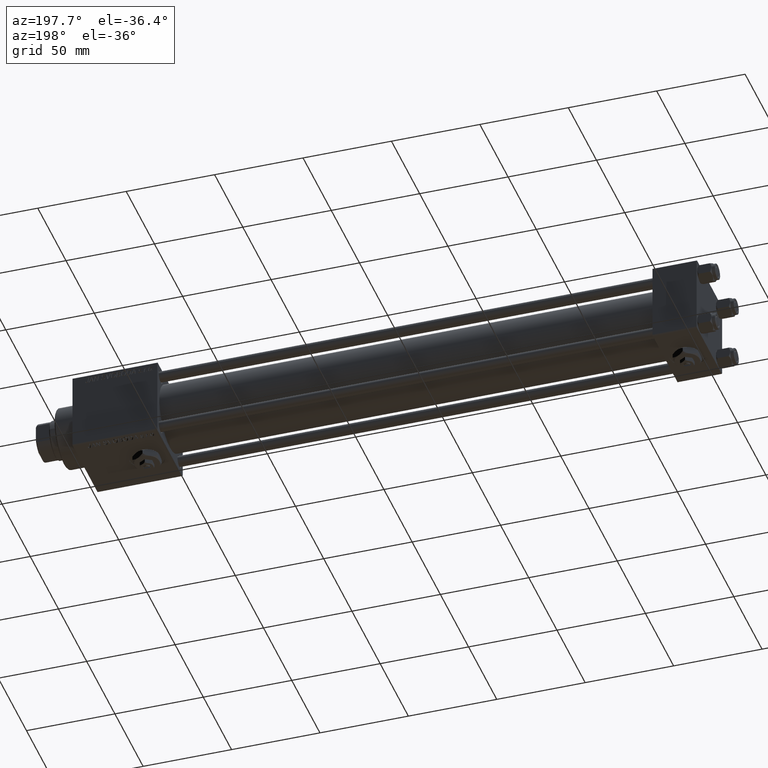
[diagram: clean part render]
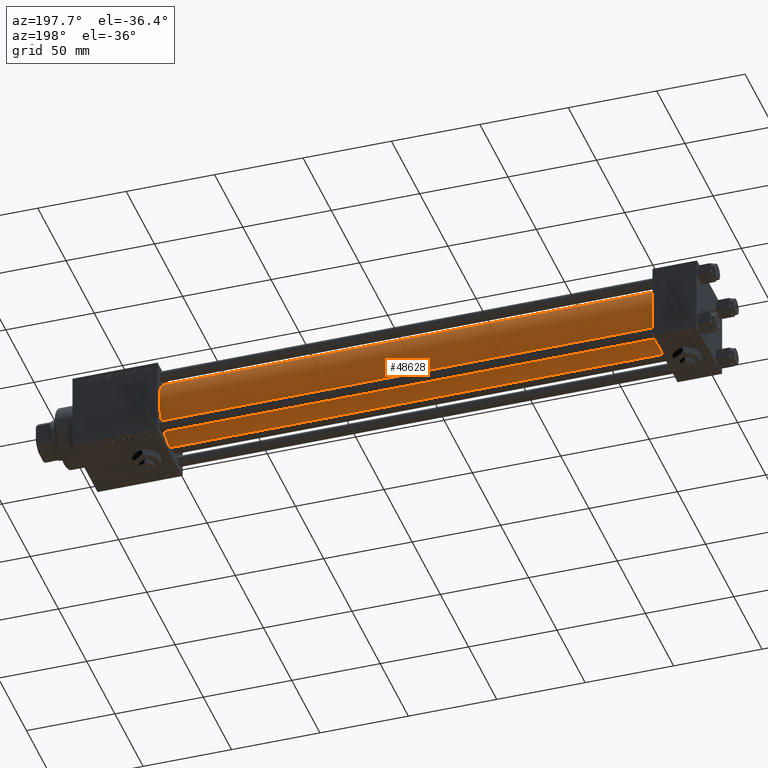
[diagram: same view with one face highlighted and labeled with its STEP entity id]
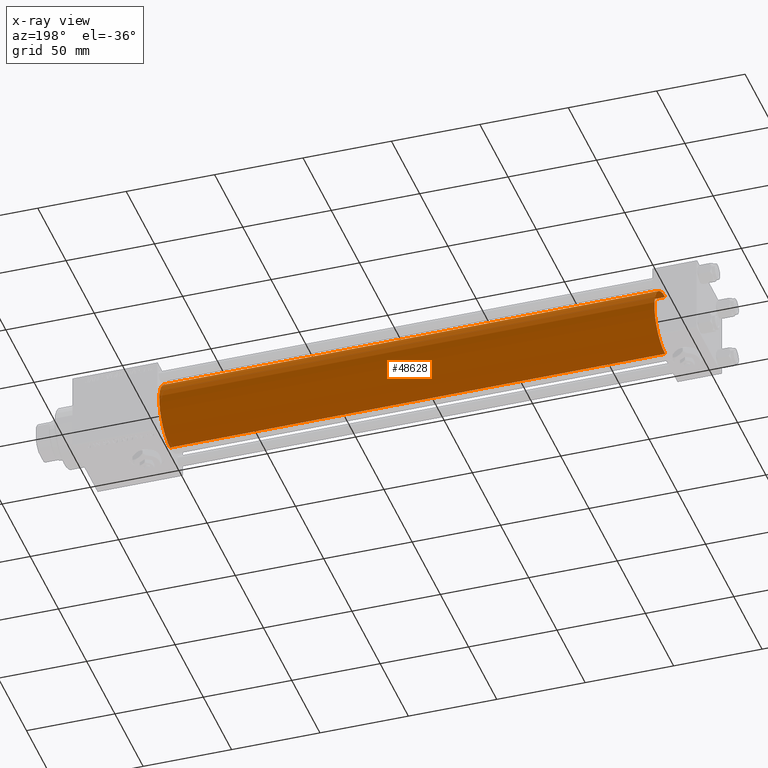
[diagram: x-ray of the same camera — body ghosted, the highlighted face saturated]
A machine part, auxiliary view. The second image highlights one B-rep face of the part: STEP entity #48628.
The next image is the same camera in x-ray: the body ghosted, the highlighted face saturated — about 0% of this face is hidden behind the body in this view.
In plain terms, the highlighted cylindrical surface (edge-blend (fillet) strip) has radius 19 mm, axis along (-1, -0, -0).
Its self-contained STEP definition (entity closure, byte-faithful):
#1950 = LINE ( 'NONE', #13844, #15502 ) ;
#1953 = CARTESIAN_POINT ( 'NONE',  ( 25.00000000000002132, -2.752562955852396712E-16, -19.00000000000000000 ) ) ;
#3522 = DIRECTION ( 'NONE',  ( 0.000000000000000000, 0.000000000000000000, 1.000000000000000000 ) ) ;
#4441 = EDGE_CURVE ( 'NONE', #27357, #22938, #1950, .T. ) ;
#4600 = ORIENTED_EDGE ( 'NONE', *, *, #21602, .F. ) ;
#8574 = AXIS2_PLACEMENT_3D ( 'NONE', #44125, #43864, #3522 ) ;
#8615 = AXIS2_PLACEMENT_3D ( 'NONE', #21759, #12297, #28814 ) ;
#9071 = ORIENTED_EDGE ( 'NONE', *, *, #37285, .F. ) ;
#10364 = DIRECTION ( 'NONE',  ( -1.000000000000000000, -0.000000000000000000, -0.000000000000000000 ) ) ;
#12297 = DIRECTION ( 'NONE',  ( 1.000000000000000000, 0.000000000000000000, 0.000000000000000000 ) ) ;
#13844 = CARTESIAN_POINT ( 'NONE',  ( 305.0000000000000568, -2.752562955852396712E-16, -19.00000000000000000 ) ) ;
#15502 = VECTOR ( 'NONE', #18437, 1000.000000000000000 ) ;
#15936 = CYLINDRICAL_SURFACE ( 'NONE', #8574, 19.00000000000000000 ) ;
#18437 = DIRECTION ( 'NONE',  ( -1.000000000000000000, -0.000000000000000000, -0.000000000000000000 ) ) ;
#18951 = CIRCLE ( 'NONE', #8615, 19.00000000000000000 ) ;
#19013 = CARTESIAN_POINT ( 'NONE',  ( 305.0000000000000568, -2.602085213965210642E-15, 19.00000000000000000 ) ) ;
#19537 = LINE ( 'NONE', #47459, #53149 ) ;
#20631 = CIRCLE ( 'NONE', #44838, 19.00000000000000000 ) ;
#21602 = EDGE_CURVE ( 'NONE', #27357, #49562, #18951, .T. ) ;
#21759 = CARTESIAN_POINT ( 'NONE',  ( 305.0000000000000568, -2.602085213965210642E-15, 0.000000000000000000 ) ) ;
#22938 = VERTEX_POINT ( 'NONE', #1953 ) ;
#23531 = FACE_OUTER_BOUND ( 'NONE', #29858, .T. ) ;
#24434 = ORIENTED_EDGE ( 'NONE', *, *, #4441, .T. ) ;
#25442 = CARTESIAN_POINT ( 'NONE',  ( 25.00000000000002132, -2.602085213965210642E-15, 19.00000000000000000 ) ) ;
#26182 = DIRECTION ( 'NONE',  ( 0.000000000000000000, 0.000000000000000000, 1.000000000000000000 ) ) ;
#26494 = CARTESIAN_POINT ( 'NONE',  ( 305.0000000000000568, -2.752562955852396712E-16, -19.00000000000000000 ) ) ;
#27357 = VERTEX_POINT ( 'NONE', #26494 ) ;
#28814 = DIRECTION ( 'NONE',  ( 0.000000000000000000, 0.000000000000000000, -1.000000000000000000 ) ) ;
#29467 = DIRECTION ( 'NONE',  ( 1.000000000000000000, -0.000000000000000000, 0.000000000000000000 ) ) ;
#29858 = EDGE_LOOP ( 'NONE', ( #4600, #24434, #39304, #9071 ) ) ;
#37285 = EDGE_CURVE ( 'NONE', #49562, #44588, #19537, .T. ) ;
#39304 = ORIENTED_EDGE ( 'NONE', *, *, #46486, .T. ) ;
#43864 = DIRECTION ( 'NONE',  ( -1.000000000000000000, -0.000000000000000000, -0.000000000000000000 ) ) ;
#44125 = CARTESIAN_POINT ( 'NONE',  ( 305.0000000000000568, -2.602085213965210642E-15, 0.000000000000000000 ) ) ;
#44588 = VERTEX_POINT ( 'NONE', #25442 ) ;
#44838 = AXIS2_PLACEMENT_3D ( 'NONE', #45992, #29467, #26182 ) ;
#45992 = CARTESIAN_POINT ( 'NONE',  ( 25.00000000000002132, -2.602085213965210642E-15, 0.000000000000000000 ) ) ;
#46486 = EDGE_CURVE ( 'NONE', #22938, #44588, #20631, .T. ) ;
#47459 = CARTESIAN_POINT ( 'NONE',  ( 305.0000000000000568, -2.602085213965210642E-15, 19.00000000000000000 ) ) ;
#48628 = ADVANCED_FACE ( 'NONE', ( #23531 ), #15936, .T. ) ;
#49562 = VERTEX_POINT ( 'NONE', #19013 ) ;
#53149 = VECTOR ( 'NONE', #10364, 1000.000000000000000 ) ;